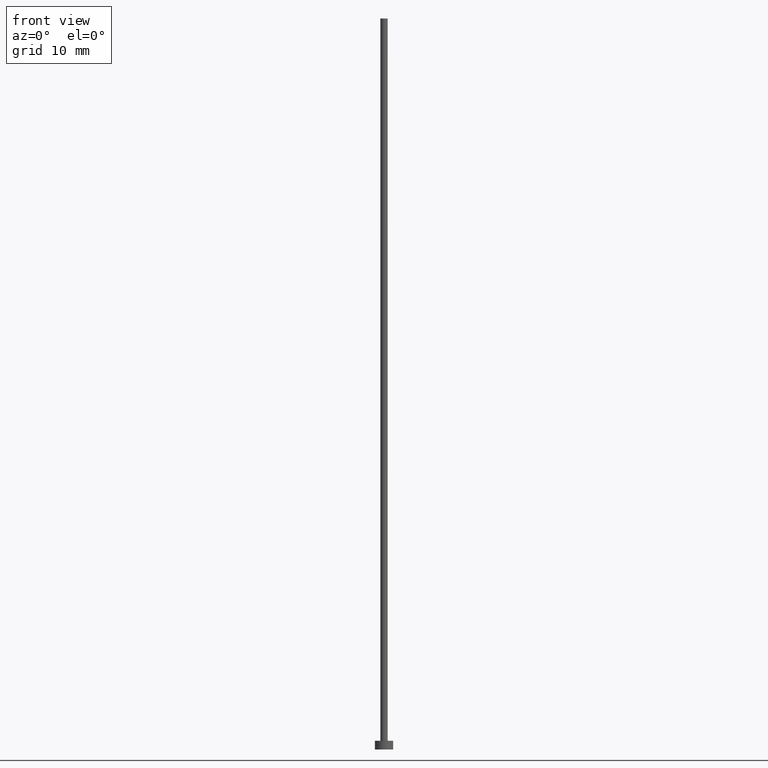
[diagram: clean part render]
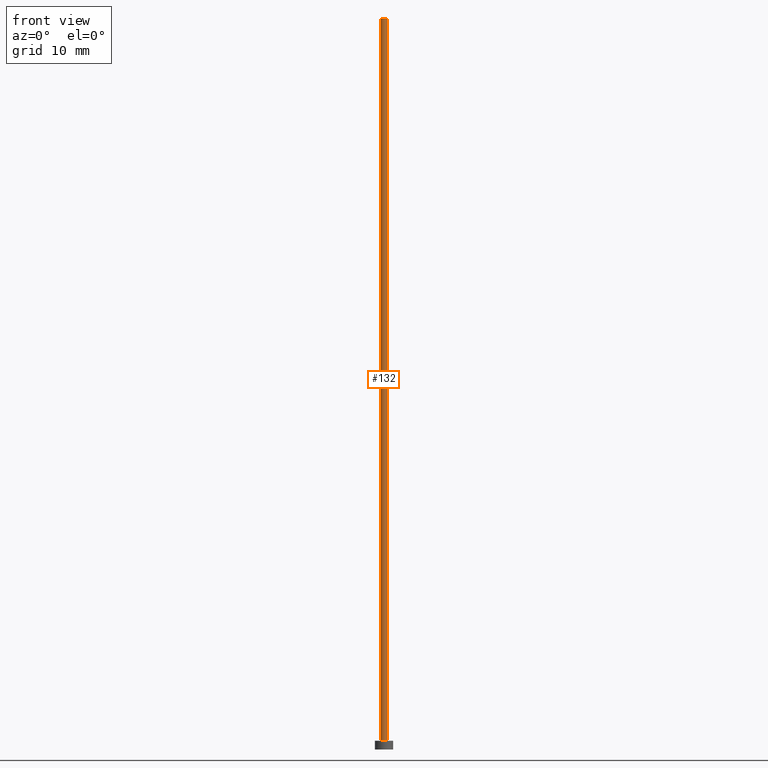
[diagram: same view with one face highlighted and labeled with its STEP entity id]
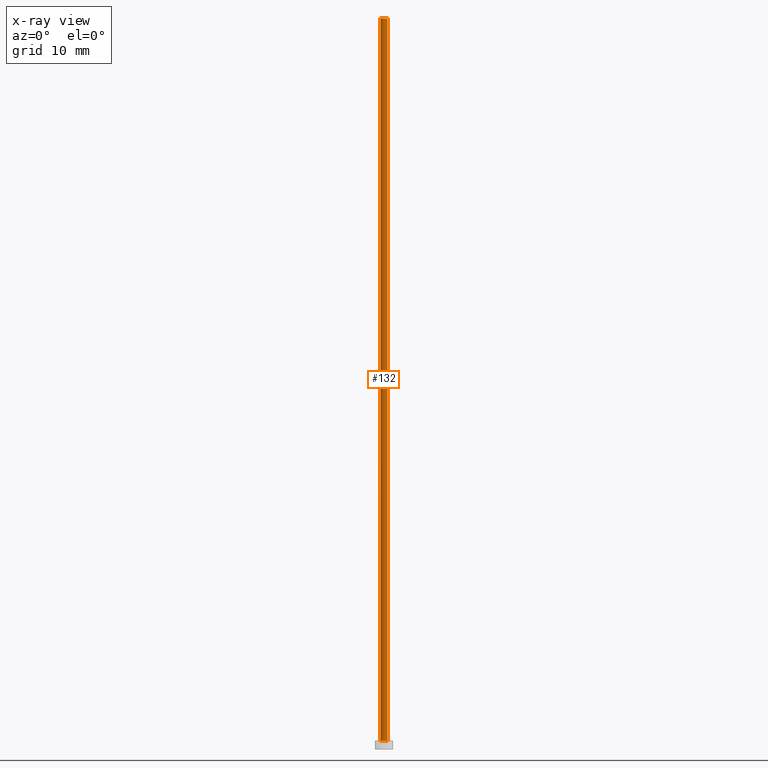
[diagram: x-ray of the same camera — body ghosted, the highlighted face saturated]
A machine part, front view. The second image highlights one B-rep face of the part: STEP entity #132.
The next image is the same camera in x-ray: the body ghosted, the highlighted face saturated — about 0% of this face is hidden behind the body in this view.
In plain terms, the highlighted cylindrical surface (edge-blend (fillet) strip) has radius 0.5 mm, axis along (-0, -0, -1).
Its self-contained STEP definition (entity closure, byte-faithful):
#11 = EDGE_CURVE ( 'NONE', #138, #176, #80, .T. ) ;
#13 = DIRECTION ( 'NONE',  ( -0.000000000000000000, -0.000000000000000000, -1.000000000000000000 ) ) ;
#17 = CIRCLE ( 'NONE', #58, 0.5000000000000000000 ) ;
#26 = EDGE_CURVE ( 'NONE', #182, #176, #17, .T. ) ;
#30 = VECTOR ( 'NONE', #13, 1000.000000000000000 ) ;
#33 = CARTESIAN_POINT ( 'NONE',  ( 0.000000000000000000, 0.000000000000000000, 100.0000000000000000 ) ) ;
#35 = DIRECTION ( 'NONE',  ( -1.000000000000000000, 0.000000000000000000, 0.000000000000000000 ) ) ;
#39 = VECTOR ( 'NONE', #233, 1000.000000000000000 ) ;
#42 = ORIENTED_EDGE ( 'NONE', *, *, #11, .F. ) ;
#44 = ORIENTED_EDGE ( 'NONE', *, *, #65, .F. ) ;
#50 = DIRECTION ( 'NONE',  ( 0.000000000000000000, 0.000000000000000000, 1.000000000000000000 ) ) ;
#58 = AXIS2_PLACEMENT_3D ( 'NONE', #220, #50, #69 ) ;
#65 = EDGE_CURVE ( 'NONE', #136, #138, #230, .T. ) ;
#69 = DIRECTION ( 'NONE',  ( 1.000000000000000000, 0.000000000000000000, 0.000000000000000000 ) ) ;
#78 = CARTESIAN_POINT ( 'NONE',  ( 0.5000000000000000000, 6.123233995736766036E-17, 100.0000000000000000 ) ) ;
#80 = LINE ( 'NONE', #238, #39 ) ;
#91 = CYLINDRICAL_SURFACE ( 'NONE', #179, 0.5000000000000000000 ) ;
#92 = CARTESIAN_POINT ( 'NONE',  ( 0.5000000000000000000, 6.123233995736766036E-17, 1.199999999999999956 ) ) ;
#109 = CARTESIAN_POINT ( 'NONE',  ( -0.5000000000000000000, 0.000000000000000000, 1.199999999999999956 ) ) ;
#114 = DIRECTION ( 'NONE',  ( -0.000000000000000000, -0.000000000000000000, -1.000000000000000000 ) ) ;
#120 = ORIENTED_EDGE ( 'NONE', *, *, #255, .T. ) ;
#128 = LINE ( 'NONE', #246, #30 ) ;
#132 = ADVANCED_FACE ( 'NONE', ( #227 ), #91, .T. ) ;
#136 = VERTEX_POINT ( 'NONE', #170 ) ;
#138 = VERTEX_POINT ( 'NONE', #78 ) ;
#144 = DIRECTION ( 'NONE',  ( 1.000000000000000000, 0.000000000000000000, 0.000000000000000000 ) ) ;
#156 = EDGE_LOOP ( 'NONE', ( #42, #44, #120, #254 ) ) ;
#163 = DIRECTION ( 'NONE',  ( 0.000000000000000000, 0.000000000000000000, 1.000000000000000000 ) ) ;
#170 = CARTESIAN_POINT ( 'NONE',  ( -0.5000000000000000000, 0.000000000000000000, 100.0000000000000000 ) ) ;
#176 = VERTEX_POINT ( 'NONE', #92 ) ;
#179 = AXIS2_PLACEMENT_3D ( 'NONE', #33, #114, #35 ) ;
#182 = VERTEX_POINT ( 'NONE', #109 ) ;
#198 = CARTESIAN_POINT ( 'NONE',  ( 0.000000000000000000, 0.000000000000000000, 100.0000000000000000 ) ) ;
#220 = CARTESIAN_POINT ( 'NONE',  ( 0.000000000000000000, 0.000000000000000000, 1.199999999999999956 ) ) ;
#227 = FACE_OUTER_BOUND ( 'NONE', #156, .T. ) ;
#230 = CIRCLE ( 'NONE', #242, 0.5000000000000000000 ) ;
#233 = DIRECTION ( 'NONE',  ( -0.000000000000000000, -0.000000000000000000, -1.000000000000000000 ) ) ;
#238 = CARTESIAN_POINT ( 'NONE',  ( 0.5000000000000000000, 6.123233995736766036E-17, 100.0000000000000000 ) ) ;
#242 = AXIS2_PLACEMENT_3D ( 'NONE', #198, #163, #144 ) ;
#246 = CARTESIAN_POINT ( 'NONE',  ( -0.5000000000000000000, 0.000000000000000000, 100.0000000000000000 ) ) ;
#254 = ORIENTED_EDGE ( 'NONE', *, *, #26, .T. ) ;
#255 = EDGE_CURVE ( 'NONE', #136, #182, #128, .T. ) ;